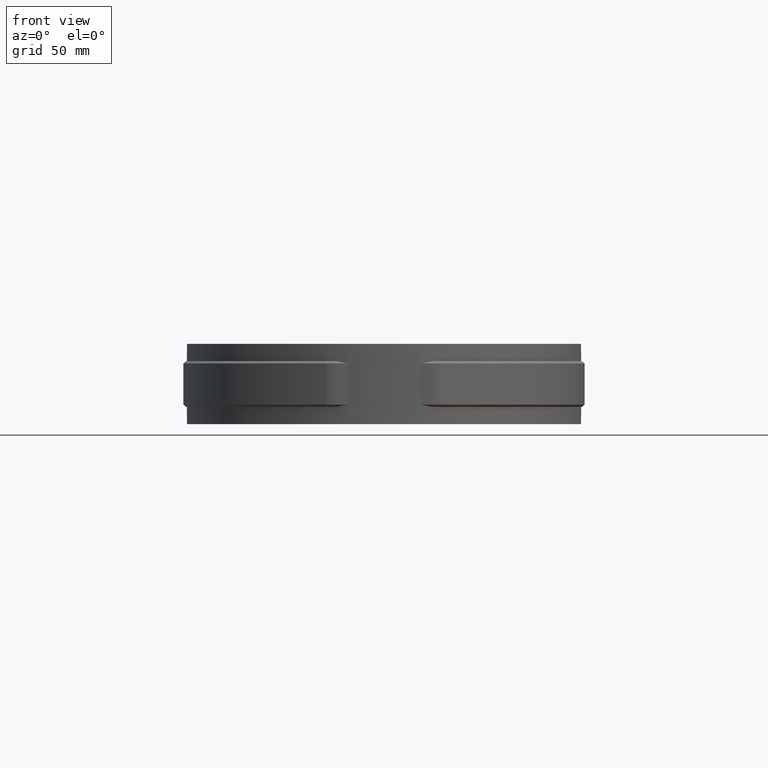
[diagram: clean part render]
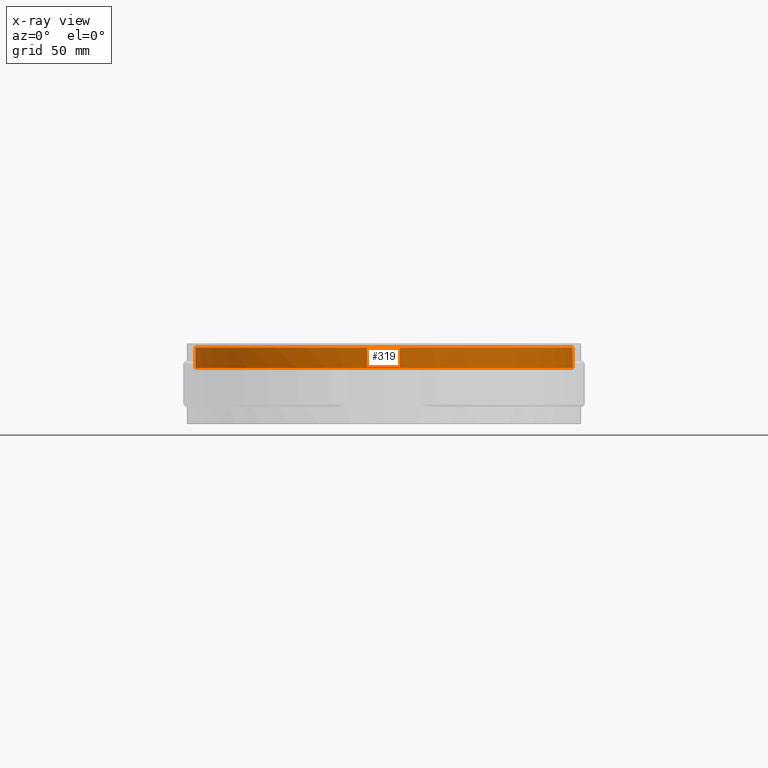
[diagram: x-ray — body ghosted, one internal face saturated and labeled with its STEP entity id]
A machine part, front view, then the same camera in x-ray: the body is ghosted and one INTERNAL B-rep face — a face not visible from any outside direction — is saturated and labeled: STEP entity #319.
In plain terms, the highlighted cylindrical surface (partial cylindrical patch) has radius 82.5 mm, axis along (0, 0, 1).
Its self-contained STEP definition (entity closure, byte-faithful):
#319 = ADVANCED_FACE( '', ( #501 ), #502, .F. );
#501 = FACE_OUTER_BOUND( '', #890, .T. );
#502 = CYLINDRICAL_SURFACE( '', #891, 82.5000000000000 );
#890 = EDGE_LOOP( '', ( #2426, #2427, #2428, #2429, #2430, #2431, #2432, #2433 ) );
#891 = AXIS2_PLACEMENT_3D( '', #2434, #2435, #2436 );
#2426 = ORIENTED_EDGE( '', *, *, #4987, .F. );
#2427 = ORIENTED_EDGE( '', *, *, #4984, .F. );
#2428 = ORIENTED_EDGE( '', *, *, #4981, .F. );
#2429 = ORIENTED_EDGE( '', *, *, #4988, .F. );
#2430 = ORIENTED_EDGE( '', *, *, #4989, .T. );
#2431 = ORIENTED_EDGE( '', *, *, #4967, .T. );
#2432 = ORIENTED_EDGE( '', *, *, #4990, .T. );
#2433 = ORIENTED_EDGE( '', *, *, #4964, .F. );
#2434 = CARTESIAN_POINT( '', ( -1.73472347597681E-015, 5.55111512312578E-014, 4.33680868994202E-016 ) );
#2435 = DIRECTION( '', ( 0.000000000000000, 0.000000000000000, 1.00000000000000 ) );
#2436 = DIRECTION( '', ( 1.00000000000000, -6.26427921880514E-017, 0.000000000000000 ) );
#4964 = EDGE_CURVE( '', #5433, #5435, #5436, .T. );
#4967 = EDGE_CURVE( '', #5440, #5441, #5442, .T. );
#4981 = EDGE_CURVE( '', #5467, #5469, #5470, .T. );
#4984 = EDGE_CURVE( '', #5469, #5474, #5475, .T. );
#4987 = EDGE_CURVE( '', #5474, #5433, #5479, .T. );
#4988 = EDGE_CURVE( '', #5480, #5467, #5481, .T. );
#4989 = EDGE_CURVE( '', #5480, #5440, #5482, .F. );
#4990 = EDGE_CURVE( '', #5441, #5435, #5483, .T. );
#5433 = VERTEX_POINT( '', #6242 );
#5435 = VERTEX_POINT( '', #6267 );
#5436 = B_SPLINE_CURVE_WITH_KNOTS( '', 3, ( #6268, #6269, #6270, #6271, #6272, #6273, #6274, #6275, #6276, #6277, #6278, #6279, #6280, #6281, #6282, #6283, #6284, #6285, #6286, #6287, #6288, #6289, #6290, #6291, #6292, #6293, #6294, #6295, #6296, #6297, #6298, #6299, #6300, #6301, #6302, #6303, #6304, #6305, #6306, #6307, #6308, #6309, #6310, #6311, #6312, #6313, #6314, #6315, #6316, #6317, #6318, #6319, #6320, #6321, #6322, #6323, #6324, #6325, #6326, #6327, #6328, #6329, #6330, #6331, #6332, #6333, #6334, #6335, #6336, #6337, #6338, #6339, #6340, #6341, #6342, #6343, #6344, #6345, #6346, #6347, #6348 ), .UNSPECIFIED., .F., .F., ( 4, 2, 2, 2, 2, 2, 2, 2, 2, 2, 2, 2, 2, 2, 2, 2, 2, 2, 2, 2, 2, 2, 2, 2, 2, 2, 2, 2, 2, 2, 2, 2, 2, 1, 2, 2, 2, 2, 2, 2, 4 ), ( 0.257277402189563, 0.264785360051026, 0.272293317912489, 0.276047296843220, 0.279801275773951, 0.287309233635414, 0.294817191496876, 0.298571170427608, 0.302325149358339, 0.309833107219802, 0.313587086150533, 0.317341065081264, 0.324849022942727, 0.328603001873458, 0.332356980804190, 0.347372896527115, 0.354880854388577, 0.358634833319309, 0.362388812250040, 0.369896770111503, 0.377404727972965, 0.381158706903697, 0.384912685834428, 0.392420643695891, 0.407436559418816, 0.411190538349547, 0.414944517280278, 0.422452475141741, 0.426206454072472, 0.429960433003204, 0.437468390864666, 0.441222369795398, 0.444976348726129, 0.452484306587592, 0.459992264449054, 0.463746243379786, 0.467500222310517, 0.475008180171980, 0.478762159102711, 0.482516138033442, 0.497532053756367 ), .UNSPECIFIED. );
#5440 = VERTEX_POINT( '', #6470 );
#5441 = VERTEX_POINT( '', #6471 );
#5442 = CIRCLE( '', #6472, 82.5000000000000 );
#5467 = VERTEX_POINT( '', #6504 );
#5469 = VERTEX_POINT( '', #6534 );
#5470 = B_SPLINE_CURVE_WITH_KNOTS( '', 3, ( #6535, #6536, #6537, #6538 ), .UNSPECIFIED., .F., .F., ( 4, 4 ), ( 0.000529901516890593, 0.00107274825442095 ), .UNSPECIFIED. );
#5474 = VERTEX_POINT( '', #6563 );
#5475 = CIRCLE( '', #6564, 82.5000000000000 );
#5479 = B_SPLINE_CURVE_WITH_KNOTS( '', 3, ( #6573, #6574, #6575, #6576 ), .UNSPECIFIED., .F., .F., ( 4, 4 ), ( 0.000000000000000, 0.000512470745723786 ), .UNSPECIFIED. );
#5480 = VERTEX_POINT( '', #6577 );
#5481 = B_SPLINE_CURVE_WITH_KNOTS( '', 3, ( #6578, #6579, #6580, #6581, #6582, #6583, #6584, #6585, #6586, #6587, #6588, #6589, #6590, #6591, #6592, #6593, #6594, #6595, #6596, #6597, #6598, #6599, #6600, #6601, #6602, #6603, #6604, #6605, #6606, #6607, #6608, #6609, #6610, #6611, #6612, #6613, #6614, #6615, #6616, #6617, #6618, #6619, #6620, #6621, #6622, #6623, #6624, #6625, #6626, #6627, #6628, #6629, #6630, #6631, #6632, #6633, #6634, #6635, #6636, #6637, #6638, #6639, #6640, #6641, #6642, #6643, #6644, #6645, #6646, #6647, #6648, #6649, #6650, #6651, #6652 ), .UNSPECIFIED., .F., .F., ( 4, 2, 2, 2, 2, 2, 2, 2, 2, 2, 2, 2, 2, 2, 2, 2, 2, 2, 2, 2, 2, 2, 2, 2, 1, 2, 2, 2, 2, 2, 2, 2, 2, 2, 2, 2, 2, 4 ), ( 1.73472347597681E-018, 0.0150234363212334, 0.0225351544818501, 0.0262910135621584, 0.0300468726424667, 0.0375585908030833, 0.0450703089637000, 0.0600937452849333, 0.0676054634455499, 0.0713613225258583, 0.0751171816061666, 0.0826288997667832, 0.0901406179273998, 0.0938964770077081, 0.0976523360880164, 0.105164054248633, 0.120187490569866, 0.123943349650175, 0.127699208730483, 0.135210926891100, 0.138966785971408, 0.142722645051716, 0.150234363212333, 0.153990222292641, 0.157746081372950, 0.161501940453258, 0.165257799533566, 0.180281235854800, 0.187792954015416, 0.191548813095725, 0.195304672176033, 0.202816390336650, 0.206572249416958, 0.210328108497266, 0.217839826657883, 0.221595685738191, 0.225351544818500, 0.240374981139733 ), .UNSPECIFIED. );
#5482 = LINE( '', #6653, #6654 );
#5483 = LINE( '', #6655, #6656 );
#6242 = CARTESIAN_POINT( '', ( 8.50996620427313, -82.0599200292208, -9.01860082286514 ) );
#6267 = CARTESIAN_POINT( '', ( 8.32656612529002, 82.0787323035704, -9.01606629119905 ) );
#6268 = CARTESIAN_POINT( '', ( 8.50996620427313, -82.0599200292209, -9.01860082286518 ) );
#6269 = CARTESIAN_POINT( '', ( 11.0287982577608, -81.7987063253593, -9.02043483400904 ) );
#6270 = CARTESIAN_POINT( '', ( 13.5437195235062, -81.4200467957865, -9.02234041284726 ) );
#6271 = CARTESIAN_POINT( '', ( 18.5094413839968, -80.4366641427394, -9.02418323442158 ) );
#6272 = CARTESIAN_POINT( '', ( 20.9662645811391, -79.8316394889463, -9.02412669587898 ) );
#6273 = CARTESIAN_POINT( '', ( 24.6122729663469, -78.7533634070626, -9.02260965017305 ) );
#6274 = CARTESIAN_POINT( '', ( 25.8224993789075, -78.3648343708507, -9.02188012071848 ) );
#6275 = CARTESIAN_POINT( '', ( 28.2118801151624, -77.5366917047164, -9.02019539476650 ) );
#6276 = CARTESIAN_POINT( '', ( 29.3930762859767, -77.0965502945460, -9.01924015474379 ) );
#6277 = CARTESIAN_POINT( '', ( 32.8968541056369, -75.6992139552544, -9.01653577718687 ) );
#6278 = CARTESIAN_POINT( '', ( 35.1797068792643, -74.6652649853883, -9.01495696062348 ) );
#6279 = CARTESIAN_POINT( '', ( 39.6409298276566, -72.3955126637557, -9.01584123059542 ) );
#6280 = CARTESIAN_POINT( '', ( 41.8192991826827, -71.1597076844724, -9.01786049705224 ) );
#6281 = CARTESIAN_POINT( '', ( 45.0076590024525, -69.1530012117083, -9.02059205463120 ) );
#6282 = CARTESIAN_POINT( '', ( 46.0572262691905, -68.4585599945255, -9.02146691820567 ) );
#6283 = CARTESIAN_POINT( '', ( 48.1295292776395, -67.0178404579579, -9.02287287179813 ) );
#6284 = CARTESIAN_POINT( '', ( 49.1536766392269, -66.2704718814782, -9.02340405997404 ) );
#6285 = CARTESIAN_POINT( '', ( 52.1752347744365, -63.9564880088202, -9.02425121292553 ) );
#6286 = CARTESIAN_POINT( '', ( 54.1115417412612, -62.3265047131803, -9.02375429169362 ) );
#6287 = CARTESIAN_POINT( '', ( 56.8998676072303, -59.7516158871393, -9.02177868322339 ) );
#6288 = CARTESIAN_POINT( '', ( 57.8099228963141, -58.8716327206407, -9.02093138496451 ) );
#6289 = CARTESIAN_POINT( '', ( 59.5910496334075, -57.0680569851520, -9.01911541208799 ) );
#6290 = CARTESIAN_POINT( '', ( 60.4627178225948, -56.1437018174859, -9.01814628306212 ) );
#6291 = CARTESIAN_POINT( '', ( 63.0061945626076, -53.3187720019957, -9.01565111045777 ) );
#6292 = CARTESIAN_POINT( '', ( 64.6107335419189, -51.3625449761196, -9.01482091243195 ) );
#6293 = CARTESIAN_POINT( '', ( 66.8813231739723, -48.3191534415789, -9.01638975000035 ) );
#6294 = CARTESIAN_POINT( '', ( 67.6154473337547, -47.2864856889535, -9.01721829674569 ) );
#6295 = CARTESIAN_POINT( '', ( 69.0378564647377, -45.1844533186984, -9.01901807632853 ) );
#6296 = CARTESIAN_POINT( '', ( 69.7229594846277, -44.1197201782573, -9.01998432166338 ) );
#6297 = CARTESIAN_POINT( '', ( 73.0132338132647, -38.7397766458940, -9.02427358408446 ) );
#6298 = CARTESIAN_POINT( '', ( 75.2237142864714, -34.2458278358632, -9.02471025931915 ) );
#6299 = CARTESIAN_POINT( '', ( 77.9186708183531, -27.2252496169494, -9.02002715655594 ) );
#6300 = CARTESIAN_POINT( '', ( 78.7128886671100, -24.8381592282987, -9.01782506536494 ) );
#6301 = CARTESIAN_POINT( '', ( 79.7435874153931, -21.1851602582173, -9.01575048272000 ) );
#6302 = CARTESIAN_POINT( '', ( 80.0605481922724, -19.9540479662440, -9.01528274619416 ) );
#6303 = CARTESIAN_POINT( '', ( 80.6355585511987, -17.4860545642104, -9.01535101921427 ) );
#6304 = CARTESIAN_POINT( '', ( 80.8942703030430, -16.2470722067367, -9.01586384349429 ) );
#6305 = CARTESIAN_POINT( '', ( 81.5844353442420, -12.5152387980421, -9.01802222294115 ) );
#6306 = CARTESIAN_POINT( '', ( 81.9301017538752, -10.0075331287730, -9.02022657914032 ) );
#6307 = CARTESIAN_POINT( '', ( 82.3903449589066, -4.95210564065568, -9.02327831472800 ) );
#6308 = CARTESIAN_POINT( '', ( 82.5032476070811, -2.42174841680338, -9.02410808998124 ) );
#6309 = CARTESIAN_POINT( '', ( 82.4982697354235, 1.37319825178658, -9.02372127987665 ) );
#6310 = CARTESIAN_POINT( '', ( 82.4675314598513, 2.63833153007064, -9.02333706709447 ) );
#6311 = CARTESIAN_POINT( '', ( 82.3476593249088, 5.16890143578718, -9.02215764968220 ) );
#6312 = CARTESIAN_POINT( '', ( 82.2582567821310, 6.43679476261558, -9.02136050065552 ) );
#6313 = CARTESIAN_POINT( '', ( 81.9038535173802, 10.2186751395545, -9.01871727097453 ) );
#6314 = CARTESIAN_POINT( '', ( 81.5534344835804, 12.7111925056324, -9.01657004985317 ) );
#6315 = CARTESIAN_POINT( '', ( 80.1697274889559, 20.1050530533530, -9.01393437934089 ) );
#6316 = CARTESIAN_POINT( '', ( 78.8067034125180, 24.9233875806844, -9.02010556767777 ) );
#6317 = CARTESIAN_POINT( '', ( 76.5432276529630, 30.8054079654780, -9.02325761207655 ) );
#6318 = CARTESIAN_POINT( '', ( 76.0623292605949, 31.9747121557926, -9.02369483871845 ) );
#6319 = CARTESIAN_POINT( '', ( 75.0429884063869, 34.2988343975685, -9.02405882526433 ) );
#6320 = CARTESIAN_POINT( '', ( 74.5070072929143, 35.4479677235636, -9.02398421675410 ) );
#6321 = CARTESIAN_POINT( '', ( 72.8229837142258, 38.8519400914078, -9.02302488821120 ) );
#6322 = CARTESIAN_POINT( '', ( 71.5980712543609, 41.0656142075216, -9.02134038807725 ) );
#6323 = CARTESIAN_POINT( '', ( 69.6070602561854, 44.3025031108648, -9.01855941468213 ) );
#6324 = CARTESIAN_POINT( '', ( 68.9168055341078, 45.3688357947681, -9.01760535994802 ) );
#6325 = CARTESIAN_POINT( '', ( 67.4901886437588, 47.4650585507751, -9.01606628309486 ) );
#6326 = CARTESIAN_POINT( '', ( 66.7538378665217, 48.4951126929491, -9.01548133447020 ) );
#6327 = CARTESIAN_POINT( '', ( 64.4760788681742, 51.5314326778500, -9.01507215877829 ) );
#6328 = CARTESIAN_POINT( '', ( 62.8661096145759, 53.4839701676567, -9.01683088648979 ) );
#6329 = CARTESIAN_POINT( '', ( 60.3130113437467, 56.3045190316973, -9.01961326923843 ) );
#6330 = CARTESIAN_POINT( '', ( 59.4395974424519, 57.2256835488927, -9.02057179271735 ) );
#6331 = CARTESIAN_POINT( '', ( 57.6603278707468, 59.0180581821930, -9.02221796059121 ) );
#6332 = CARTESIAN_POINT( '', ( 56.7528965838898, 59.8910427760846, -9.02290759991646 ) );
#6333 = CARTESIAN_POINT( '', ( 53.9780311030922, 62.4414546604056, -9.02429919141699 ) );
#6334 = CARTESIAN_POINT( '', ( 50.1382346769298, 65.6595059927194, -9.02422519279407 ) );
#6335 = CARTESIAN_POINT( '', ( 46.0217960882223, 68.5168763905225, -9.02039754956191 ) );
#6336 = CARTESIAN_POINT( '', ( 42.8293620565696, 70.5228704903757, -9.01764991816375 ) );
#6337 = CARTESIAN_POINT( '', ( 41.7476728594824, 71.1686610359827, -9.01677005624768 ) );
#6338 = CARTESIAN_POINT( '', ( 39.5486378061532, 72.4137538766957, -9.01552996557636 ) );
#6339 = CARTESIAN_POINT( '', ( 38.4290673860402, 73.0141357392989, -9.01519698371287 ) );
#6340 = CARTESIAN_POINT( '', ( 35.0366426193516, 74.7336110838635, -9.01566161480244 ) );
#6341 = CARTESIAN_POINT( '', ( 32.7292360212163, 75.7723675794778, -9.01751679780097 ) );
#6342 = CARTESIAN_POINT( '', ( 29.1998300821107, 77.1700788386203, -9.01991900011174 ) );
#6343 = CARTESIAN_POINT( '', ( 28.0119606891876, 77.6092028730998, -9.02067237011719 ) );
#6344 = CARTESIAN_POINT( '', ( 25.6132670227649, 78.4335315070736, -9.02182748896893 ) );
#6345 = CARTESIAN_POINT( '', ( 24.4033770797211, 78.8183114086004, -9.02222782464163 ) );
#6346 = CARTESIAN_POINT( '', ( 18.3318536355310, 80.5965852964993, -9.02304158397892 ) );
#6347 = CARTESIAN_POINT( '', ( 13.3779937622175, 81.5662847417535, -9.01857572163701 ) );
#6348 = CARTESIAN_POINT( '', ( 8.32656612529010, 82.0787323035705, -9.01606629119906 ) );
#6470 = CARTESIAN_POINT( '', ( -8.32656612529002, 82.0787323035705, 4.33680868994202E-016 ) );
#6471 = CARTESIAN_POINT( '', ( 8.32656612529003, 82.0787323035704, 4.33680868994202E-016 ) );
#6472 = AXIS2_PLACEMENT_3D( '', #9466, #9467, #9468 );
#6504 = CARTESIAN_POINT( '', ( -8.54009540729189, -82.0567899106122, -9.02086703443602 ) );
#6534 = CARTESIAN_POINT( '', ( -8.00000000000001, -82.1112050818887, -9.00000000000001 ) );
#6535 = CARTESIAN_POINT( '', ( -8.54009540729189, -82.0567899106122, -9.02086703443600 ) );
#6536 = CARTESIAN_POINT( '', ( -8.36064930487505, -82.0754658402552, -9.00698020691030 ) );
#6537 = CARTESIAN_POINT( '', ( -8.18061971847613, -82.0936075110533, -9.00000000000001 ) );
#6538 = CARTESIAN_POINT( '', ( -8.00000000000001, -82.1112050818887, -9.00000000000001 ) );
#6563 = CARTESIAN_POINT( '', ( 7.99999999999999, -82.1112050818887, -9.00000000000001 ) );
#6564 = AXIS2_PLACEMENT_3D( '', #9492, #9493, #9494 );
#6573 = CARTESIAN_POINT( '', ( 7.99999999999999, -82.1112050818887, -9.00000000000001 ) );
#6574 = CARTESIAN_POINT( '', ( 8.17051280853411, -82.0945922156312, -9.00000000000001 ) );
#6575 = CARTESIAN_POINT( '', ( 8.34049960425131, -82.0774944436052, -9.00622189472031 ) );
#6576 = CARTESIAN_POINT( '', ( 8.50996620427313, -82.0599200292208, -9.01860082286515 ) );
#6577 = CARTESIAN_POINT( '', ( -8.32656612528988, 82.0787323035705, -9.01623979335202 ) );
#6578 = CARTESIAN_POINT( '', ( -8.32656612528989, 82.0787323035705, -9.01623979335209 ) );
#6579 = CARTESIAN_POINT( '', ( -13.3805400662138, 81.5660264291797, -9.01937556351338 ) );
#6580 = CARTESIAN_POINT( '', ( -18.3087519312040, 80.5985288607736, -9.02569919885398 ) );
#6581 = CARTESIAN_POINT( '', ( -25.5202932600739, 78.4935375994080, -9.02632566543051 ) );
#6582 = CARTESIAN_POINT( '', ( -27.8938141459034, 77.6822047357302, -9.02532325465102 ) );
#6583 = CARTESIAN_POINT( '', ( -31.4078533309675, 76.2979796534153, -9.02263643483334 ) );
#6584 = CARTESIAN_POINT( '', ( -32.5714807579699, 75.8086571413326, -9.02155968583760 ) );
#6585 = CARTESIAN_POINT( '', ( -34.8830205858643, 74.7731818979578, -9.01935026255702 ) );
#6586 = CARTESIAN_POINT( '', ( -36.0314139129142, 74.2266372103241, -9.01821773004732 ) );
#6587 = CARTESIAN_POINT( '', ( -39.4261703051486, 72.5138120328578, -9.01542751281202 ) );
#6588 = CARTESIAN_POINT( '', ( -41.6311642539995, 71.2706966750767, -9.01485627291721 ) );
#6589 = CARTESIAN_POINT( '', ( -45.9250642868085, 68.5824650471736, -9.01707700248468 ) );
#6590 = CARTESIAN_POINT( '', ( -48.0192459468457, 67.1324490859807, -9.01919382625234 ) );
#6591 = CARTESIAN_POINT( '', ( -54.0371412811276, 62.5435221945903, -9.02385669357953 ) );
#6592 = CARTESIAN_POINT( '', ( -57.7260531564951, 59.1533856252874, -9.02372353282263 ) );
#6593 = CARTESIAN_POINT( '', ( -62.7829957741980, 53.5802015916996, -9.01899319346039 ) );
#6594 = CARTESIAN_POINT( '', ( -64.3887490124832, 51.6406416943230, -9.01690961854488 ) );
#6595 = CARTESIAN_POINT( '', ( -66.6739685532522, 48.6048982702201, -9.01536497422334 ) );
#6596 = CARTESIAN_POINT( '', ( -67.4152115779630, 47.5714786321204, -9.01516703353024 ) );
#6597 = CARTESIAN_POINT( '', ( -68.8446925921000, 45.4781775497552, -9.01574951575432 ) );
#6598 = CARTESIAN_POINT( '', ( -69.5344440835607, 44.4163584743006, -9.01644076299906 ) );
#6599 = CARTESIAN_POINT( '', ( -71.5290477279877, 41.1855871347837, -9.01894341191568 ) );
#6600 = CARTESIAN_POINT( '', ( -72.7596795625214, 38.9708716309965, -9.02112230912888 ) );
#6601 = CARTESIAN_POINT( '', ( -75.0189673356955, 34.4217132869103, -9.02386627061579 ) );
#6602 = CARTESIAN_POINT( '', ( -76.0395460065705, 32.1036608646438, -9.02441618491445 ) );
#6603 = CARTESIAN_POINT( '', ( -77.4084194462707, 28.5620114536702, -9.02363258296372 ) );
#6604 = CARTESIAN_POINT( '', ( -77.8376681793118, 27.3706825850132, -9.02311976154800 ) );
#6605 = CARTESIAN_POINT( '', ( -78.6418297711900, 24.9663666359637, -9.02172544920745 ) );
#6606 = CARTESIAN_POINT( '', ( -79.0173098017683, 23.7511586018756, -9.02084206161926 ) );
#6607 = CARTESIAN_POINT( '', ( -80.0546691406732, 20.0975391960700, -9.01806007954009 ) );
#6608 = CARTESIAN_POINT( '', ( -80.6295817874997, 17.6468390560847, -9.01597726654532 ) );
#6609 = CARTESIAN_POINT( '', ( -82.0141798755525, 10.2511390066844, -9.01436576092498 ) );
#6610 = CARTESIAN_POINT( '', ( -82.4865156089802, 5.26289725983240, -9.02087016150601 ) );
#6611 = CARTESIAN_POINT( '', ( -82.5030182903154, -1.04597181738835, -9.02351517536174 ) );
#6612 = CARTESIAN_POINT( '', ( -82.4773688291759, -2.31211699752263, -9.02383120282283 ) );
#6613 = CARTESIAN_POINT( '', ( -82.3671497933183, -4.84921528901509, -9.02394517356164 ) );
#6614 = CARTESIAN_POINT( '', ( -82.2828731223046, -6.11411930481460, -9.02374298403909 ) );
#6615 = CARTESIAN_POINT( '', ( -81.9432400114814, -9.89798327741019, -9.02244351640760 ) );
#6616 = CARTESIAN_POINT( '', ( -81.6012633829824, -12.4061179860622, -9.02058880585821 ) );
#6617 = CARTESIAN_POINT( '', ( -80.9144274551471, -16.1465914948470, -9.01783108696270 ) );
#6618 = CARTESIAN_POINT( '', ( -80.6560846776001, -17.3912066928460, -9.01693160421288 ) );
#6619 = CARTESIAN_POINT( '', ( -80.0834725076969, -19.8619107052278, -9.01562559717865 ) );
#6620 = CARTESIAN_POINT( '', ( -79.7691142408393, -21.0888735244121, -9.01522520378691 ) );
#6621 = CARTESIAN_POINT( '', ( -78.7423450717900, -24.7447324855608, -9.01555117211420 ) );
#6622 = CARTESIAN_POINT( '', ( -77.9464178132812, -27.1486524201831, -9.01753236049816 ) );
#6623 = CARTESIAN_POINT( '', ( -76.5840464581814, -30.7041474825428, -9.02031030226893 ) );
#6624 = CARTESIAN_POINT( '', ( -76.1024544309098, -31.8790114530836, -9.02121653802608 ) );
#6625 = CARTESIAN_POINT( '', ( -75.0877404425772, -34.2006750936688, -9.02269566560497 ) );
#6626 = CARTESIAN_POINT( '', ( -74.0206253278422, -36.4965819303931, -9.02384345954186 ) );
#6627 = CARTESIAN_POINT( '', ( -72.8490229634582, -38.7411300738560, -9.02401838253653 ) );
#6628 = CARTESIAN_POINT( '', ( -71.6250016305988, -40.9599126896849, -9.02368278549106 ) );
#6629 = CARTESIAN_POINT( '', ( -70.9856160953921, -42.0582892657855, -9.02325843648528 ) );
#6630 = CARTESIAN_POINT( '', ( -67.6708998705333, -47.4617480211428, -9.02014528032114 ) );
#6631 = CARTESIAN_POINT( '', ( -64.6626649999509, -51.4789551614393, -9.01395004089316 ) );
#6632 = CARTESIAN_POINT( '', ( -59.6349983683397, -57.0630373969039, -9.01653949637620 ) );
#6633 = CARTESIAN_POINT( '', ( -57.8726708569849, -58.8503027703401, -9.01868110749775 ) );
#6634 = CARTESIAN_POINT( '', ( -55.0970053714454, -61.4179008202764, -9.02132939134479 ) );
#6635 = CARTESIAN_POINT( '', ( -54.1497202049470, -62.2548540985298, -9.02213189561222 ) );
#6636 = CARTESIAN_POINT( '', ( -52.2101656156297, -63.8902000583172, -9.02333473147897 ) );
#6637 = CARTESIAN_POINT( '', ( -51.2204386174413, -64.6863316518550, -9.02373225815812 ) );
#6638 = CARTESIAN_POINT( '', ( -48.2050640444648, -66.9995607404742, -9.02415307946798 ) );
#6639 = CARTESIAN_POINT( '', ( -46.1279980021190, -68.4461794227296, -9.02334302785888 ) );
#6640 = CARTESIAN_POINT( '', ( -42.9121195732818, -70.4727281509759, -9.02107304031983 ) );
#6641 = CARTESIAN_POINT( '', ( -41.8221115691413, -71.1250382396484, -9.02015573133096 ) );
#6642 = CARTESIAN_POINT( '', ( -39.6149725098471, -72.3775796344227, -9.01830280674761 ) );
#6643 = CARTESIAN_POINT( '', ( -38.4988005318086, -72.9773606359516, -9.01736862440943 ) );
#6644 = CARTESIAN_POINT( '', ( -35.1127330260128, -74.6977724604617, -9.01517413219416 ) );
#6645 = CARTESIAN_POINT( '', ( -32.8053652845086, -75.7396391383000, -9.01502854261070 ) );
#6646 = CARTESIAN_POINT( '', ( -29.2689133987524, -77.1439527151597, -9.01707290378812 ) );
#6647 = CARTESIAN_POINT( '', ( -28.0769852404206, -77.5856382042112, -9.01798756049707 ) );
#6648 = CARTESIAN_POINT( '', ( -25.6864567739570, -78.4095293580136, -9.01983085085436 ) );
#6649 = CARTESIAN_POINT( '', ( -24.4855884701926, -78.7926850558627, -9.02076072857144 ) );
#6650 = CARTESIAN_POINT( '', ( -18.4536749503058, -80.5668173476686, -9.02469116569383 ) );
#6651 = CARTESIAN_POINT( '', ( -13.5405960967741, -81.5363606686332, -9.02427217213376 ) );
#6652 = CARTESIAN_POINT( '', ( -8.54009540729188, -82.0567899106121, -9.02086703443597 ) );
#6653 = CARTESIAN_POINT( '', ( -8.32656612529002, 82.0787323035704, 4.33680868994202E-016 ) );
#6654 = VECTOR( '', #9496, 1000.00000000000 );
#6655 = CARTESIAN_POINT( '', ( 8.32656612529003, 82.0787323035704, 4.33680868994202E-016 ) );
#6656 = VECTOR( '', #9497, 1000.00000000000 );
#9466 = CARTESIAN_POINT( '', ( -1.73472347597681E-015, 5.55111512312578E-014, 4.33680868994202E-016 ) );
#9467 = DIRECTION( '', ( 0.000000000000000, 0.000000000000000, 1.00000000000000 ) );
#9468 = DIRECTION( '', ( 1.00000000000000, -6.26427921880514E-017, 0.000000000000000 ) );
#9492 = CARTESIAN_POINT( '', ( -1.73472347597681E-015, 5.55111512312578E-014, -9.00000000000001 ) );
#9493 = DIRECTION( '', ( 0.000000000000000, 0.000000000000000, 1.00000000000000 ) );
#9494 = DIRECTION( '', ( 1.00000000000000, 0.000000000000000, 0.000000000000000 ) );
#9496 = DIRECTION( '', ( 0.000000000000000, 0.000000000000000, -1.00000000000000 ) );
#9497 = DIRECTION( '', ( 0.000000000000000, 0.000000000000000, -1.00000000000000 ) );